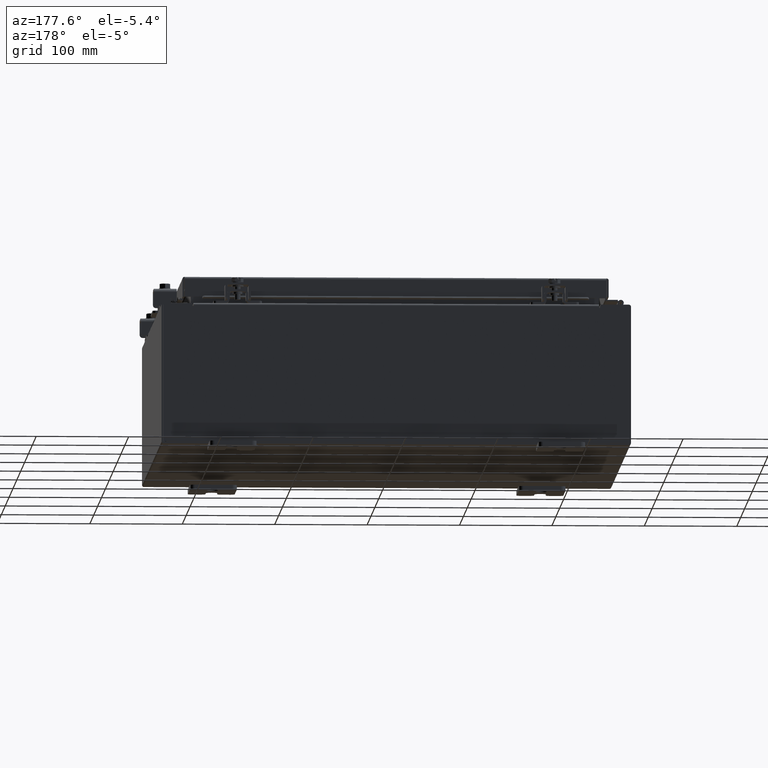
[diagram: clean part render]
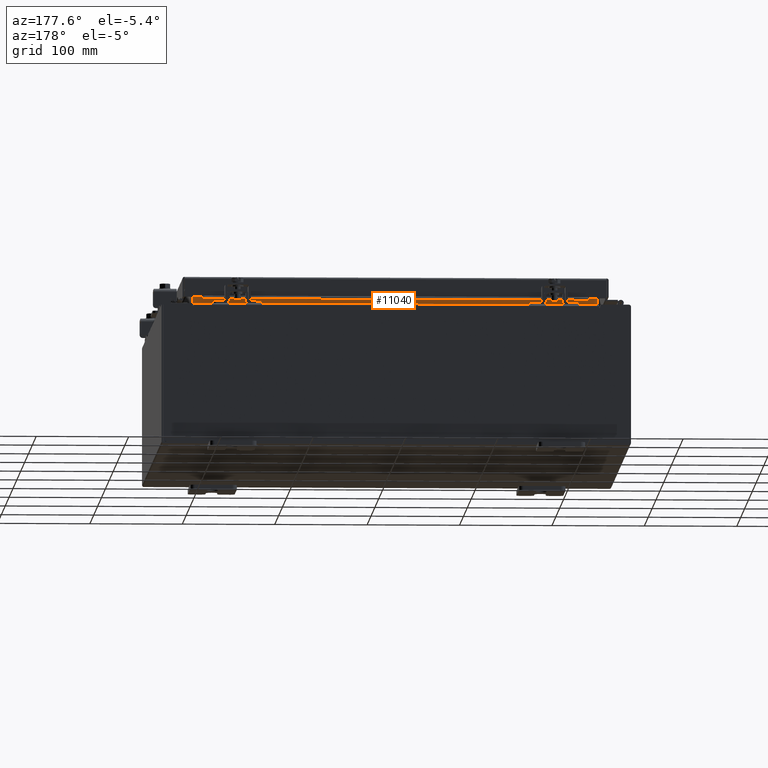
[diagram: same view with one face highlighted and labeled with its STEP entity id]
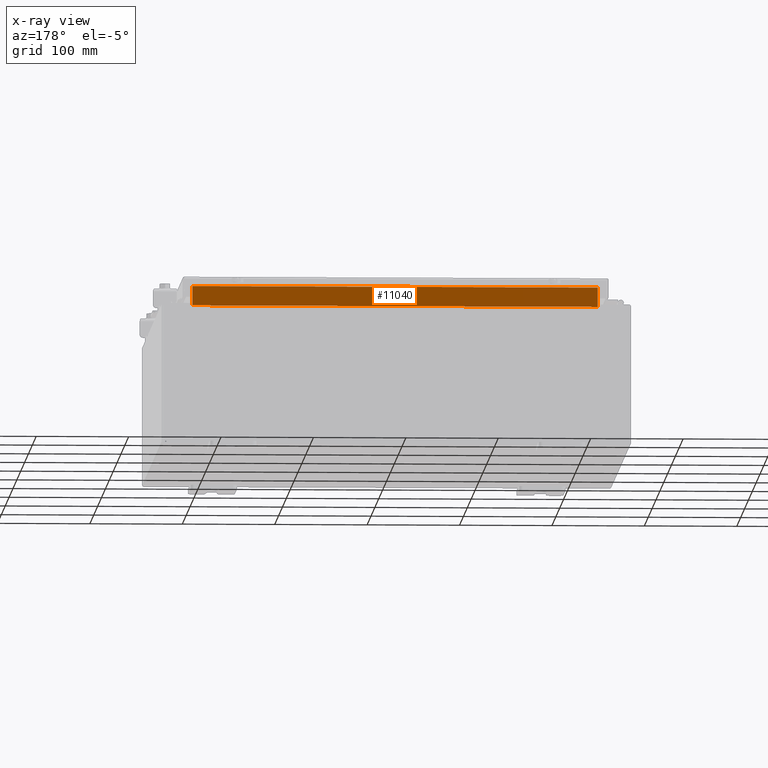
[diagram: x-ray of the same camera — body ghosted, the highlighted face saturated]
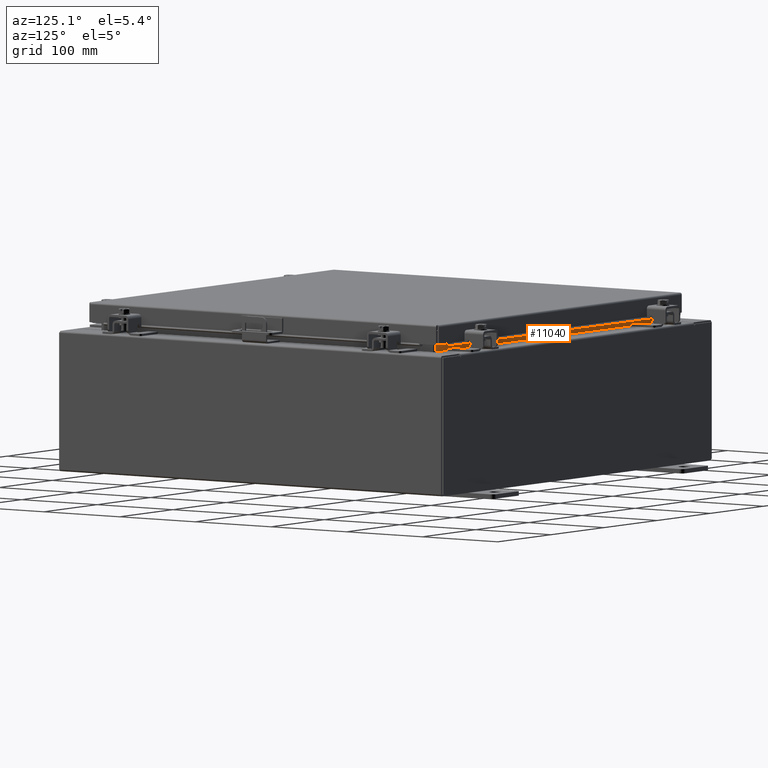
[diagram: same view with one face highlighted and labeled with its STEP entity id]
A machine part, auxiliary view. The second image highlights one B-rep face of the part: STEP entity #11040.
The next image is the same camera in x-ray: the body ghosted, the highlighted face saturated — about 0% of this face is hidden behind the body in this view.
A second angle (auxiliary view) of the same face is appended — the face is thin or edge-on in the first view.
In plain terms, the highlighted planar face has unit normal (0, 1, 0).
Its self-contained STEP definition (entity closure, byte-faithful):
#98 = LINE ( 'NONE', #2501, #22901 ) ;
#2307 = EDGE_CURVE ( 'NONE', #6862, #26800, #10104, .T. ) ;
#2501 = CARTESIAN_POINT ( 'NONE',  ( 8.637200000000000000, -1.300300000000000000, 3.837600000000005000 ) ) ;
#3611 = DIRECTION ( 'NONE',  ( -0.0000000000000000000, -0.0000000000000000000, 1.000000000000000000 ) ) ;
#4348 = ORIENTED_EDGE ( 'NONE', *, *, #9450, .F. ) ;
#4807 = VECTOR ( 'NONE', #24514, 39.37007874015748100 ) ;
#6364 = PLANE ( 'NONE',  #8296 ) ;
#6497 = EDGE_CURVE ( 'NONE', #16660, #13138, #98, .T. ) ;
#6862 = VERTEX_POINT ( 'NONE', #11045 ) ;
#8296 = AXIS2_PLACEMENT_3D ( 'NONE', #10904, #26873, #13196 ) ;
#8584 = CARTESIAN_POINT ( 'NONE',  ( -8.637200000000000000, -1.300299999999999800, 3.000000000000005300 ) ) ;
#8608 = FACE_OUTER_BOUND ( 'NONE', #27011, .T. ) ;
#9450 = EDGE_CURVE ( 'NONE', #26800, #16660, #23449, .T. ) ;
#10104 = LINE ( 'NONE', #18119, #4807 ) ;
#10904 = CARTESIAN_POINT ( 'NONE',  ( 0.0000000000000000000, -1.300299999999999800, 0.0000000000000000000 ) ) ;
#11040 = ADVANCED_FACE ( 'NONE', ( #8608 ), #6364, .T. ) ;
#11045 = CARTESIAN_POINT ( 'NONE',  ( -8.637200000000000000, -1.300299999999999800, 3.013000000000004800 ) ) ;
#11315 = VECTOR ( 'NONE', #3611, 39.37007874015748100 ) ;
#11545 = DIRECTION ( 'NONE',  ( -1.000000000000000000, -0.0000000000000000000, -0.0000000000000000000 ) ) ;
#13138 = VERTEX_POINT ( 'NONE', #15063 ) ;
#13196 = DIRECTION ( 'NONE',  ( 0.0000000000000000000, -0.0000000000000000000, 1.000000000000000000 ) ) ;
#14579 = LINE ( 'NONE', #8584, #20674 ) ;
#15063 = CARTESIAN_POINT ( 'NONE',  ( -8.637200000000000000, -1.300300000000000000, 3.837600000000005000 ) ) ;
#16660 = VERTEX_POINT ( 'NONE', #29077 ) ;
#17233 = CARTESIAN_POINT ( 'NONE',  ( 8.637200000000000000, -1.300299999999999800, 3.925300000000005300 ) ) ;
#18119 = CARTESIAN_POINT ( 'NONE',  ( -8.637200000000000000, -1.300299999999999800, 3.013000000000005200 ) ) ;
#18204 = ORIENTED_EDGE ( 'NONE', *, *, #6497, .F. ) ;
#18995 = CARTESIAN_POINT ( 'NONE',  ( 8.637199999999996400, -1.300299999999999800, 3.013000000000004800 ) ) ;
#20611 = EDGE_CURVE ( 'NONE', #13138, #6862, #14579, .T. ) ;
#20674 = VECTOR ( 'NONE', #24515, 39.37007874015748100 ) ;
#22901 = VECTOR ( 'NONE', #11545, 39.37007874015748100 ) ;
#23449 = LINE ( 'NONE', #17233, #11315 ) ;
#24514 = DIRECTION ( 'NONE',  ( 1.000000000000000000, 0.0000000000000000000, -6.325772226333218300E-017 ) ) ;
#24515 = DIRECTION ( 'NONE',  ( -0.0000000000000000000, -0.0000000000000000000, -1.000000000000000000 ) ) ;
#26489 = ORIENTED_EDGE ( 'NONE', *, *, #2307, .F. ) ;
#26800 = VERTEX_POINT ( 'NONE', #18995 ) ;
#26873 = DIRECTION ( 'NONE',  ( 0.0000000000000000000, 1.000000000000000000, 0.0000000000000000000 ) ) ;
#27011 = EDGE_LOOP ( 'NONE', ( #28189, #18204, #4348, #26489 ) ) ;
#28189 = ORIENTED_EDGE ( 'NONE', *, *, #20611, .F. ) ;
#29077 = CARTESIAN_POINT ( 'NONE',  ( 8.637200000000000000, -1.300299999999999800, 3.837600000000005000 ) ) ;